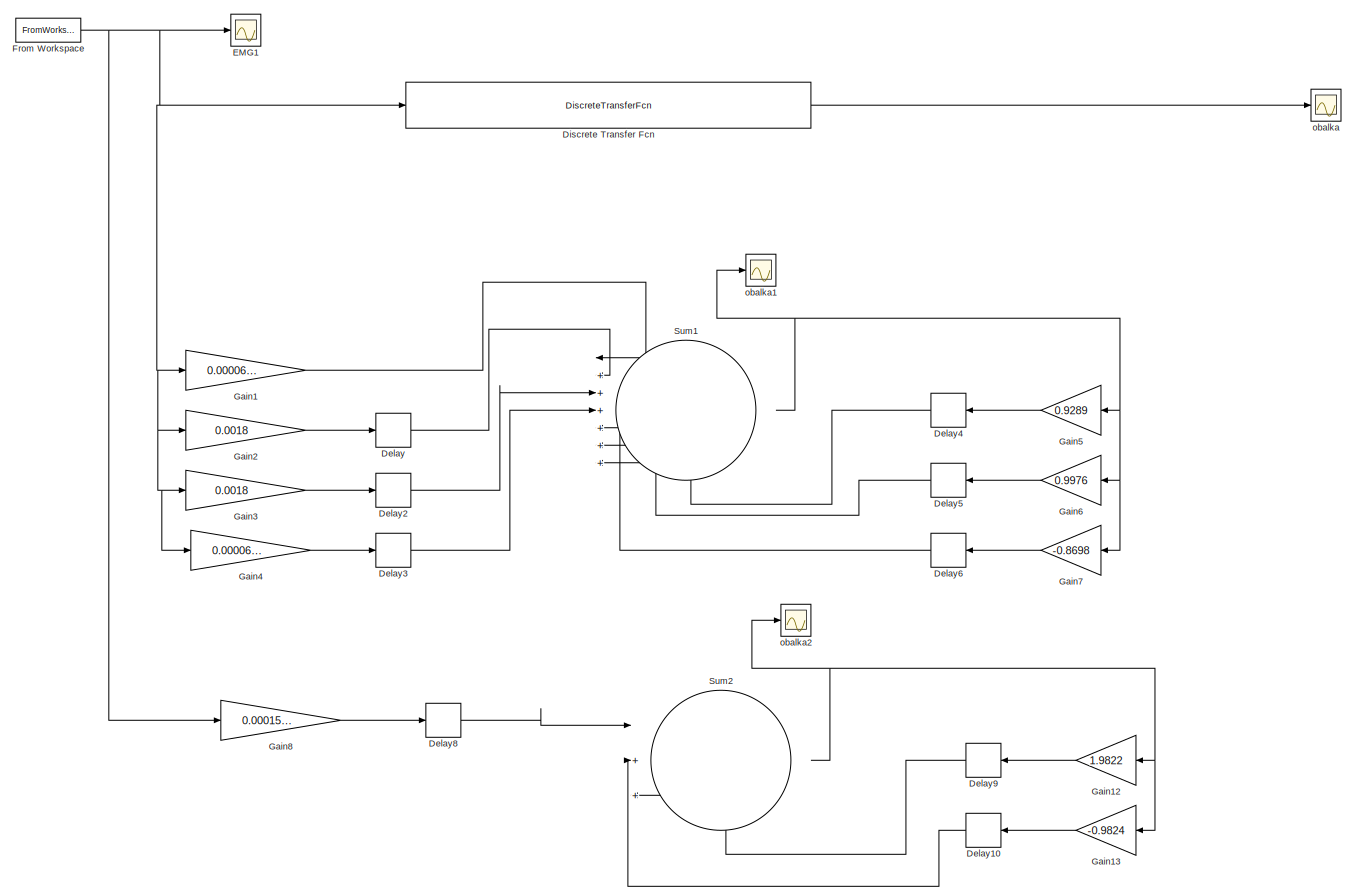
[diagram: root canvas - part 1/1, most of the canvas]
MODEL slx_a4b32c694e40
KIND model
CONFIG AbsTol = auto
CONFIG EnableMultiTasking = off
CONFIG FixedStep = auto
CONFIG MaxStep = auto
CONFIG MinStep = auto
CONFIG RelTol = 1e-3
CONFIG SampleTimeConstraint = Unconstrained
CONFIG SolverName = VariableStepAuto
CONFIG StartTime = 0.0
CONFIG StopTime = 15
BLOCK [Delay] Delay
  DelayLength = 1
  InputPortMap = u0
  SampleTime = 0.002
BLOCK [Delay] Delay10
  DelayLength = 4
  InputPortMap = u0
  NameLocation = top
  SampleTime = 0.002
BLOCK [Delay] Delay2
  InputPortMap = u0
  SampleTime = 0.002
BLOCK [Delay] Delay3
  DelayLength = 3
  InputPortMap = u0
  SampleTime = 0.002
BLOCK [Delay] Delay4
  DelayLength = 1
  InputPortMap = u0
  NameLocation = top
  SampleTime = 0.002
BLOCK [Delay] Delay5
  InputPortMap = u0
  NameLocation = top
  SampleTime = 0.002
BLOCK [Delay] Delay6
  DelayLength = 3
  InputPortMap = u0
  NameLocation = top
  SampleTime = 0.002
BLOCK [Delay] Delay8
  DelayLength = 4
  InputPortMap = u0
  SampleTime = 0.002
BLOCK [Delay] Delay9
  InputPortMap = u0
  NameLocation = top
  SampleTime = 0.002
BLOCK [DiscreteTransferFcn] Discrete Transfer Fcn
  Denominator = [0.008289 -0.0077 -0.008269 0.007721]
  InputPortMap = u0
  Numerator = [5.053e-06 1.516e-05 1.516e-05 5.053e-06]
  SampleTime = 0.002
BLOCK [Scope] EMG1
  Floating = off
  NumInputPorts = 1
  ScopeSpecificationString = Simulink.scopes.TimeScopeBlockCfg('CurrentConfiguration', extmgr.ConfigurationSet(extmgr.Configuration('Core','General UI',true),extmgr.Configuration('Core','Source UI',true),extmgr.Configuration('Sources','WiredSimulink',true,'DataLoggingVariableName','ScopeData1'),extmgr.Configuration('Visuals','Time Domain',true,'SerializedDisplays',{struct('MinYLimReal','-0.28381','MaxYLimReal','2.55432','YLab...<+1408ch>
BLOCK [FromWorkspace] From Workspace
  SampleTime = 0.002
  VariableName = A
BLOCK [Gain] Gain1
  Gain = 0.00006096
BLOCK [Gain] Gain12
  Gain = 1.9822
  NameLocation = top
BLOCK [Gain] Gain13
  Gain = -0.9824
  NameLocation = top
BLOCK [Gain] Gain2
  Gain = 0.0018
BLOCK [Gain] Gain3
  Gain = 0.0018
BLOCK [Gain] Gain4
  Gain = 0.00006096
BLOCK [Gain] Gain5
  Gain = 0.9289
  NameLocation = top
BLOCK [Gain] Gain6
  Gain = 0.9976
  NameLocation = top
BLOCK [Gain] Gain7
  Gain = -0.8698
  NameLocation = top
BLOCK [Gain] Gain8
  Gain = 0.00015793
BLOCK [Sum] Sum1
  Inputs = |+++++++
BLOCK [Sum] Sum2
  Inputs = |+++
BLOCK [Scope] obalka
  Floating = off
  NumInputPorts = 1
  ScopeSpecificationString = Simulink.scopes.TimeScopeBlockCfg('CurrentConfiguration', extmgr.ConfigurationSet(extmgr.Configuration('Core','General UI',true),extmgr.Configuration('Core','Source UI',true),extmgr.Configuration('Sources','WiredSimulink',true,'DataLoggingVariableName','ScopeData1'),extmgr.Configuration('Visuals','Time Domain',true,'SerializedDisplays',{struct('MinYLimReal','-0.27123','MaxYLimReal','2.45495','YLab...<+1443ch>
BLOCK [Scope] obalka1
  Floating = off
  NumInputPorts = 1
  ScopeSpecificationString = Simulink.scopes.TimeScopeBlockCfg('CurrentConfiguration', extmgr.ConfigurationSet(extmgr.Configuration('Core','General UI',true),extmgr.Configuration('Core','Source UI',true),extmgr.Configuration('Sources','WiredSimulink',true,'DataLoggingVariableName','ScopeData1'),extmgr.Configuration('Visuals','Time Domain',true,'SerializedDisplays',{struct('MinYLimReal','-19836297524803783603312242693790896478...<+3882ch>
BLOCK [Scope] obalka2
  Floating = off
  NumInputPorts = 1
  ScopeSpecificationString = Simulink.scopes.TimeScopeBlockCfg('CurrentConfiguration', extmgr.ConfigurationSet(extmgr.Configuration('Core','General UI',true),extmgr.Configuration('Core','Source UI',true),extmgr.Configuration('Sources','WiredSimulink',true,'DataLoggingVariableName','ScopeData1'),extmgr.Configuration('Visuals','Time Domain',true,'SerializedDisplays',{struct('MinYLimReal','-0.22941','MaxYLimReal','1.47156','YLab...<+1426ch>
LINE Delay10:1 -> Sum2:2
LINE Delay2:1 -> Sum1:3
LINE Delay3:1 -> Sum1:4
LINE Delay4:1 -> Sum1:7
LINE Delay5:1 -> Sum1:6
LINE Delay6:1 -> Sum1:5
LINE Delay8:1 -> Sum2:1
LINE Delay9:1 -> Sum2:3
LINE Delay:1 -> Sum1:2
LINE Discrete Transfer Fcn:1 -> obalka:1
NET From Workspace:1 -> Discrete Transfer Fcn:1, EMG1:1, Gain1:1, Gain2:1, Gain3:1, Gain4:1, Gain8:1
LINE Gain12:1 -> Delay9:1
LINE Gain13:1 -> Delay10:1
LINE Gain1:1 -> Sum1:1
LINE Gain2:1 -> Delay:1
LINE Gain3:1 -> Delay2:1
LINE Gain4:1 -> Delay3:1
LINE Gain5:1 -> Delay4:1
LINE Gain6:1 -> Delay5:1
LINE Gain7:1 -> Delay6:1
LINE Gain8:1 -> Delay8:1
NET Sum1:1 -> Gain5:1, Gain6:1, Gain7:1, obalka1:1
NET Sum2:1 -> Gain12:1, Gain13:1, obalka2:1
note: NET lines group one-source signal fan-out (src -> all destinations, sorted); 1:1 wires keep LINE
